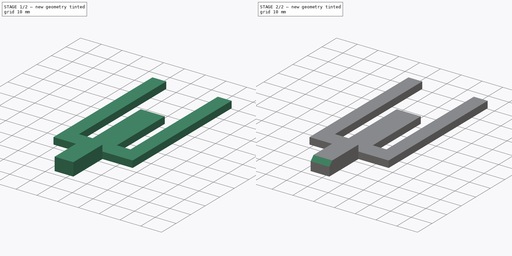
[diagram: build sequence overview — one tinted view per stage of 2, left to right]
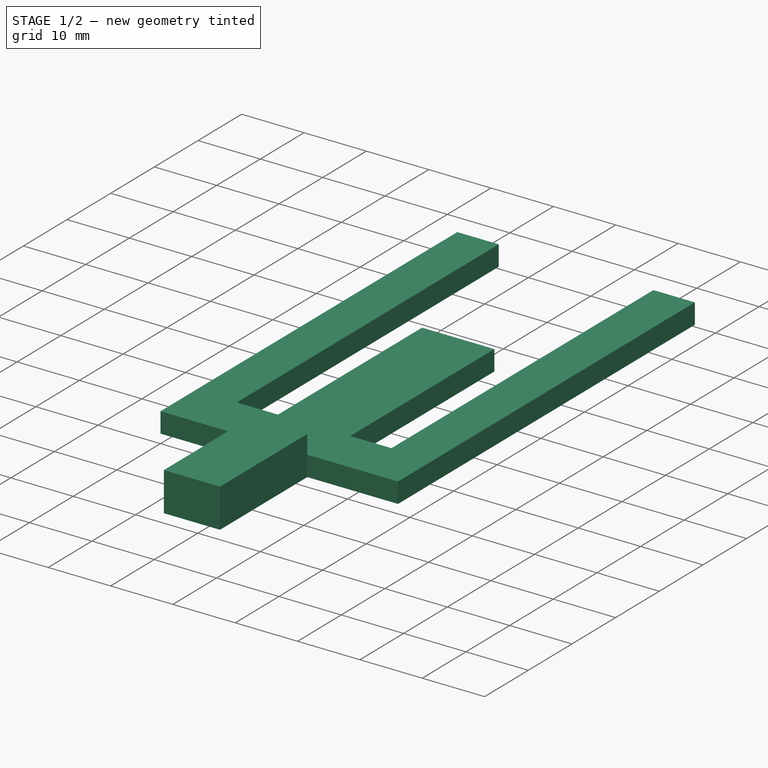
[diagram: stage 1 of 2 — iso view after this stage's code; geometry added in this stage tinted green]
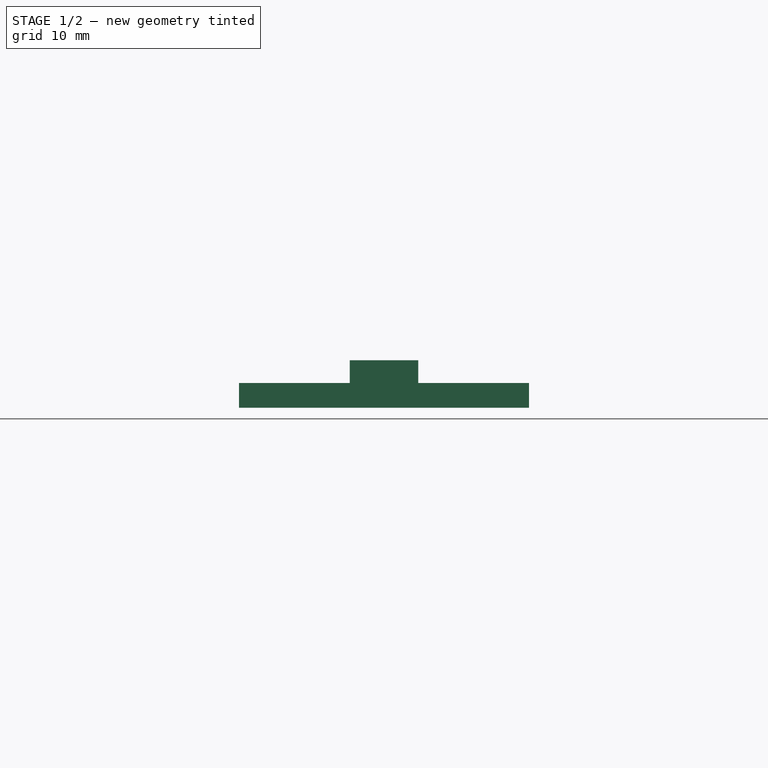
[diagram: stage 1 of 2 — front view after this stage's code; geometry added in this stage tinted green]
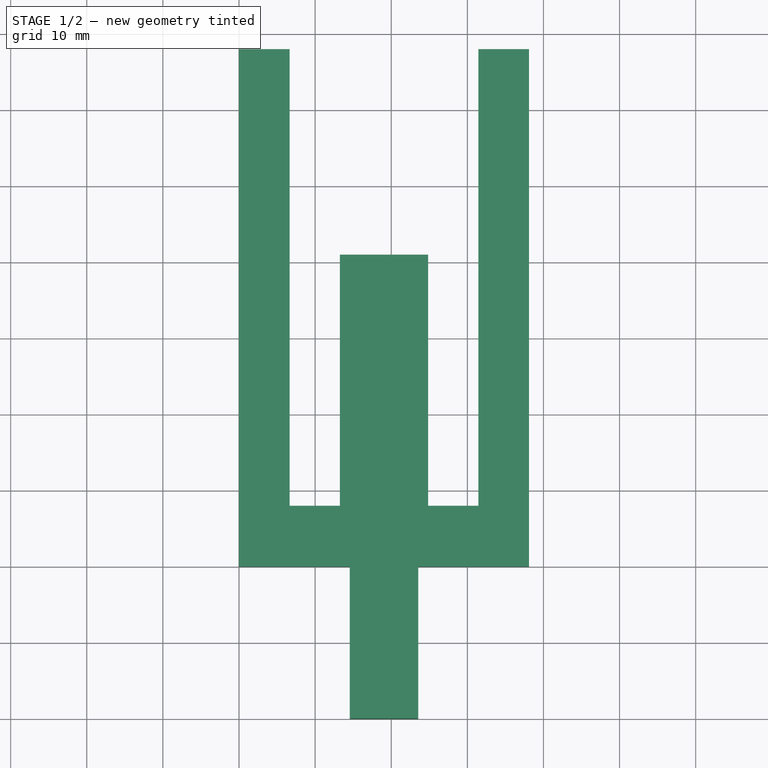
[diagram: stage 1 of 2 — top view after this stage's code; geometry added in this stage tinted green]
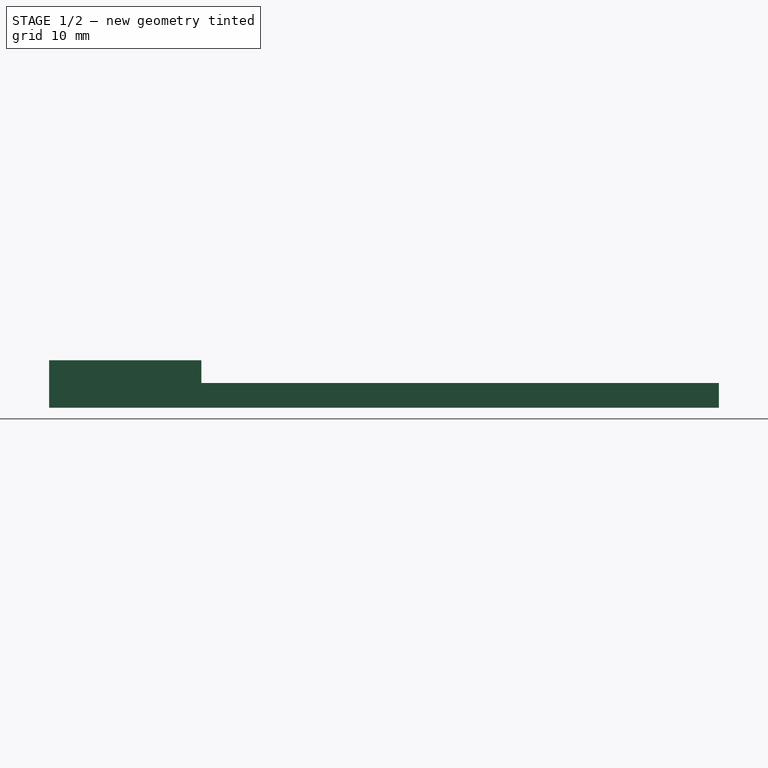
[diagram: stage 1 of 2 — right view after this stage's code; geometry added in this stage tinted green]
FCSTD DOCUMENT  (FreeCAD 0.21R33771 (Git))
Label: table saw pusher
License: All rights reserved
LicenseURL: https://en.wikipedia.org/wiki/All_rights_reserved
objects: Sketcher::SketchObject×2, PartDesign::Pad×2, PartDesign::Chamfer×1, PartDesign::Body×1
note: 9 computed .brp shape members not serialized (recipe doc carries the construction recipe); baked Part::Feature solids carry a one-line shape summary decoded from their .brp

FEATURE [Sketcher::SketchObject] Sketch
  FullyConstrained = true
  MapMode = 5
  Support = -> [XY_Plane]
  sketch-geometry (18):
    g0: LineSegment StartX=38.1 StartY=0 StartZ=0 EndX=38.1 EndY=8 EndZ=0
    g1: LineSegment StartX=31.45 StartY=8 StartZ=0 EndX=24.85 EndY=8 EndZ=0
    g2: LineSegment StartX=0 StartY=8 StartZ=0 EndX=0 EndY=0 EndZ=0
    g3: LineSegment StartX=6.65 StartY=8 StartZ=0 EndX=6.65 EndY=68 EndZ=0
    g4: LineSegment StartX=6.65 StartY=68 StartZ=0 EndX=0 EndY=68 EndZ=0
    g5: LineSegment StartX=0 StartY=68 StartZ=0 EndX=0 EndY=8 EndZ=0
    g6: LineSegment StartX=31.45 StartY=8 StartZ=0 EndX=31.45 EndY=68 EndZ=0
    g7: LineSegment StartX=31.45 StartY=68 StartZ=0 EndX=38.1 EndY=68 EndZ=0
    g8: LineSegment StartX=38.1 StartY=68 StartZ=0 EndX=38.1 EndY=8 EndZ=0
    g9: LineSegment StartX=13.25 StartY=8 StartZ=0 EndX=6.65 EndY=8 EndZ=0
    g10: LineSegment StartX=24.85 StartY=8 StartZ=0 EndX=24.85 EndY=41 EndZ=0
    g11: LineSegment StartX=24.85 StartY=41 StartZ=0 EndX=13.25 EndY=41 EndZ=0
    g12: LineSegment StartX=13.25 StartY=41 StartZ=0 EndX=13.25 EndY=8 EndZ=0
    g13: LineSegment StartX=23.55 StartY=0 StartZ=0 EndX=23.55 EndY=-20 EndZ=0
    g14: LineSegment StartX=23.55 StartY=-20 StartZ=0 EndX=14.55 EndY=-20 EndZ=0
    g15: LineSegment StartX=14.55 StartY=-20 StartZ=0 EndX=14.55 EndY=0 EndZ=0
    g16: LineSegment StartX=0 StartY=0 StartZ=0 EndX=14.55 EndY=0 EndZ=0
    g17: LineSegment StartX=23.55 StartY=0 StartZ=0 EndX=38.1 EndY=0 EndZ=0
  constraints (53):
    c: Horizontal(g1)
    c: Vertical(g0)
    c: Vertical(g2)
    c: Coincident(g2,g-1)
    c: Coincident(g3,g4)
    c: Coincident(g4,g5)
    c: Horizontal(g4)
    c: Vertical(g3)
    c: Vertical(g5)
    c: Coincident(g6,g7)
    c: Coincident(g7,g8)
    c: Horizontal(g7)
    c: Vertical(g6)
    c: Vertical(g8)
    c: Distance(g4) = 6.65
    c: Distance(g7) = 6.65
    c: Distance(g8) = 60
    c: Distance(g3) = 60
    c: Distance(g0) = 8
    c: Horizontal(g1,g0)
    c: Horizontal(g9,g2)
    c: Coincident(g6,g1)
    c: Coincident(g8,g0)
    c: Coincident(g9,g3)
    c: Coincident(g5,g2)
    c: DistanceX(g9,g9) = 6.6
    c: Horizontal(g9,g3)
    c: Coincident(g10,g11)
    c: Coincident(g11,g12)
    c: Horizontal(g11)
    c: Vertical(g10)
    c: Vertical(g12)
    c: Coincident(g10,g1)
    c: Equal(g9,g1)
    c: Distance(g10) = 33
    c: Coincident(g12,g9)
    c: Horizontal(g9,g1)
    c: Coincident(g13,g14)
    c: Coincident(g14,g15)
    c: Horizontal(g14)
    c: Vertical(g13)
    c: Vertical(g15)
    c: Distance(g13) = 20
    c: Distance(g14) = 9
    c: DistanceX(g2,g15) = 14.55
    c: Coincident(g16,g2)
    c: Coincident(g16,g15)
    c: Horizontal(g16)
    c: Coincident(g17,g13)
    c: Horizontal(g17)
    c: Coincident(g17,g0)
    c: PointOnObject(g0,g-1)
    c: Equal(g16,g17)
FEATURE [PartDesign::Pad] Pad
  Direction = (0,0,1)
  Length = 3.25
  Length2 = 10
  Profile = -> Sketch
  ReferenceAxis = -> Sketch [N_Axis]
  Type = 0
FEATURE [Sketcher::SketchObject] Sketch001
  ExternalGeometry = -> [Pad]
  FullyConstrained = true
  MapMode = 5
  Placement = pos=(0,0,3.25) rot=(0,0,1;0rad)
  Support = -> [Pad]
  sketch-geometry (4):
    g0: LineSegment StartX=14.55 StartY=-20 StartZ=0 EndX=23.55 EndY=-20 EndZ=0
    g1: LineSegment StartX=23.55 StartY=-20 StartZ=0 EndX=23.55 EndY=0 EndZ=0
    g2: LineSegment StartX=23.55 StartY=0 StartZ=0 EndX=14.55 EndY=0 EndZ=0
    g3: LineSegment StartX=14.55 StartY=0 StartZ=0 EndX=14.55 EndY=-20 EndZ=0
  constraints (10):
    c: Coincident(g0,g1)
    c: Coincident(g1,g2)
    c: Coincident(g2,g3)
    c: Coincident(g3,g0)
    c: Horizontal(g0)
    c: Horizontal(g2)
    c: Vertical(g1)
    c: Vertical(g3)
    c: Coincident(g0,g-5)
    c: Coincident(g1,g-3)
FEATURE [PartDesign::Pad] Pad001
  BaseFeature = -> Pad
  Direction = (0,0,1)
  Length = 3
  Length2 = 10
  Profile = -> Sketch001
  ReferenceAxis = -> Sketch001 [N_Axis]
  Type = 0
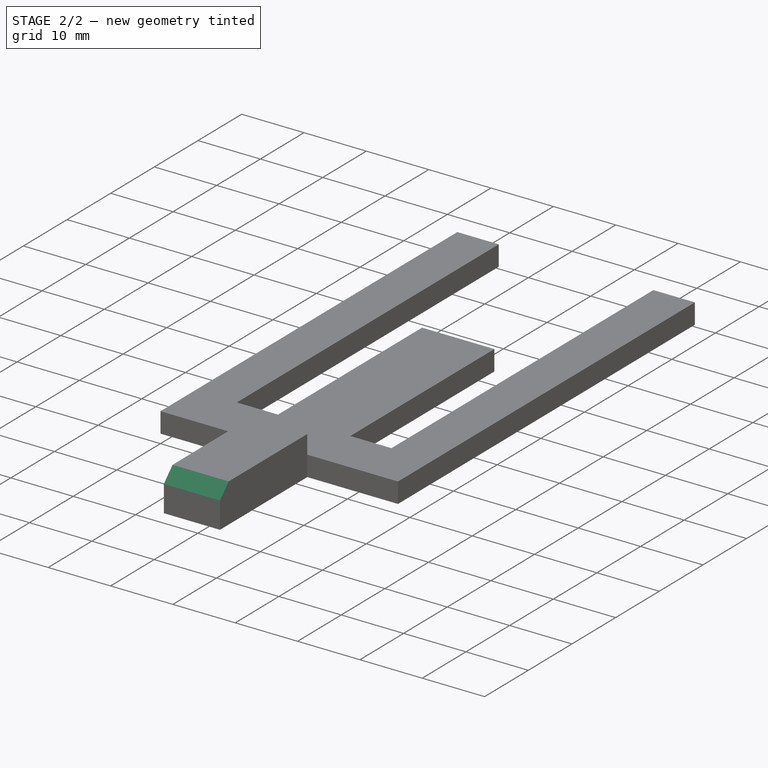
[diagram: stage 2 of 2 — iso view after this stage's code; geometry added in this stage tinted green]
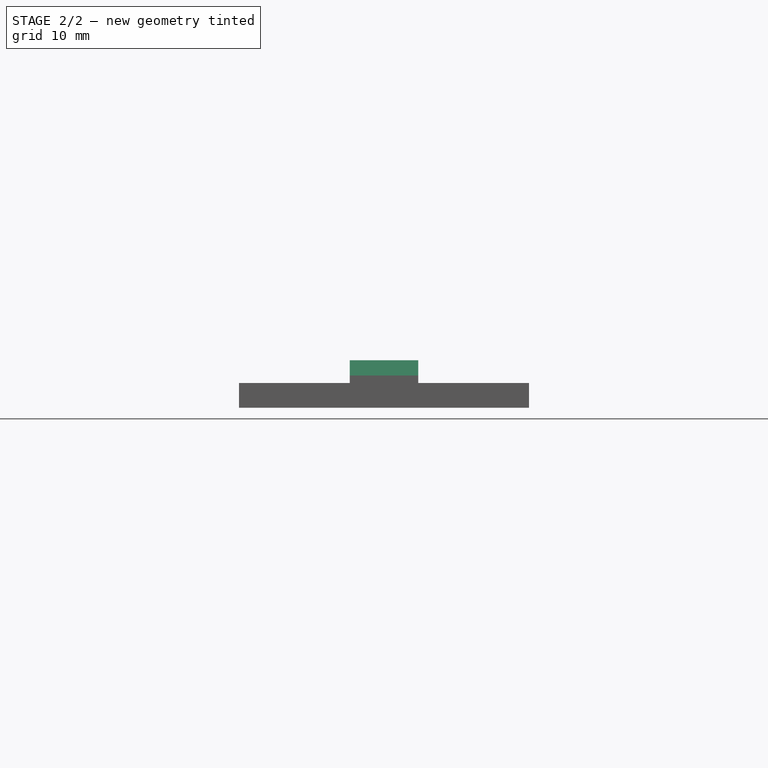
[diagram: stage 2 of 2 — front view after this stage's code; geometry added in this stage tinted green]
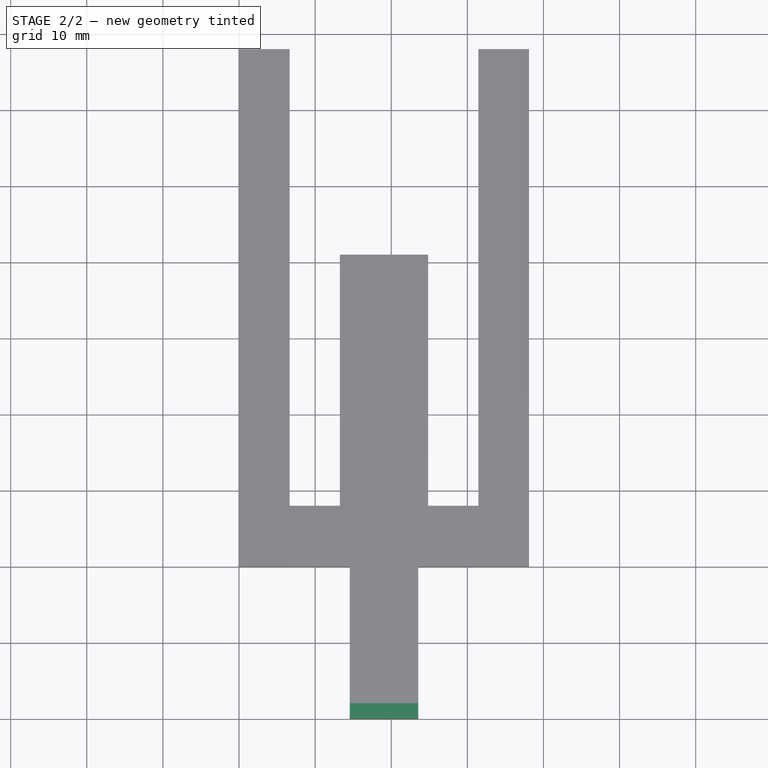
[diagram: stage 2 of 2 — top view after this stage's code; geometry added in this stage tinted green]
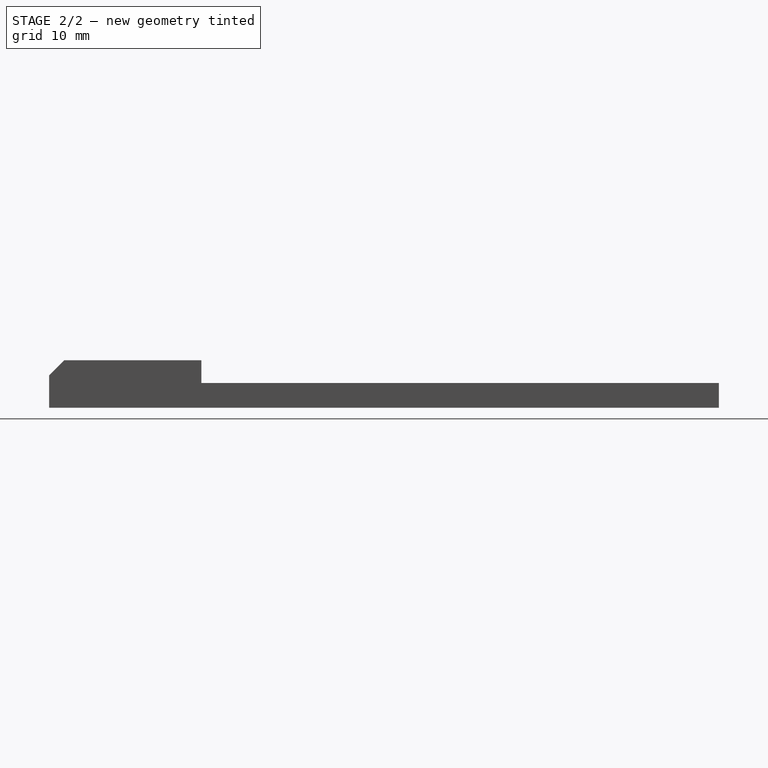
[diagram: stage 2 of 2 — right view after this stage's code; geometry added in this stage tinted green]
FEATURE [PartDesign::Chamfer] Chamfer
  Angle = 45
  Base = -> Pad001 [Edge62]
  BaseFeature = -> Pad001
  ChamferType = 0
  FlipDirection = false
  Size = 2
  Size2 = 1
  SupportTransform = false
  UseAllEdges = false
FEATURE [PartDesign::Body] Body
  Group = -> [Sketch,Pad,Sketch001,Pad001,Chamfer]
  Origin = -> Origin
  Tip = -> Chamfer
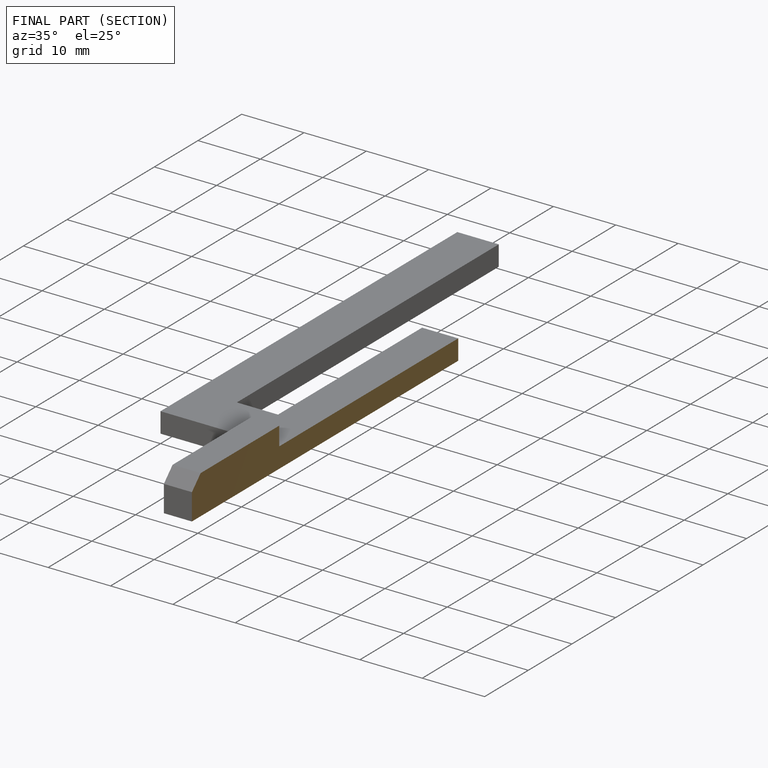
[diagram: finished part — half-section view (interior)]
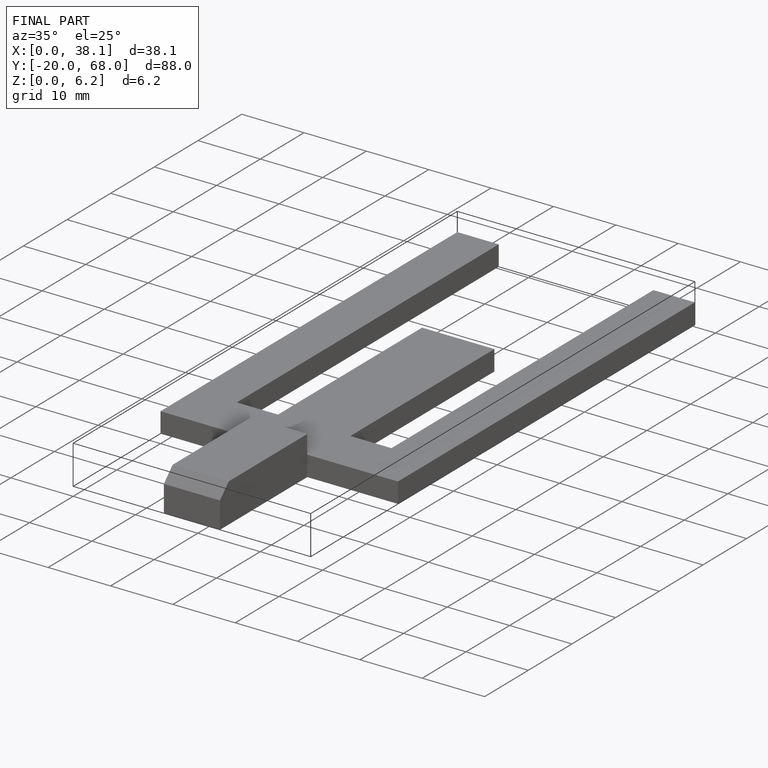
[diagram: finished part — iso view with bounding-box wireframe]
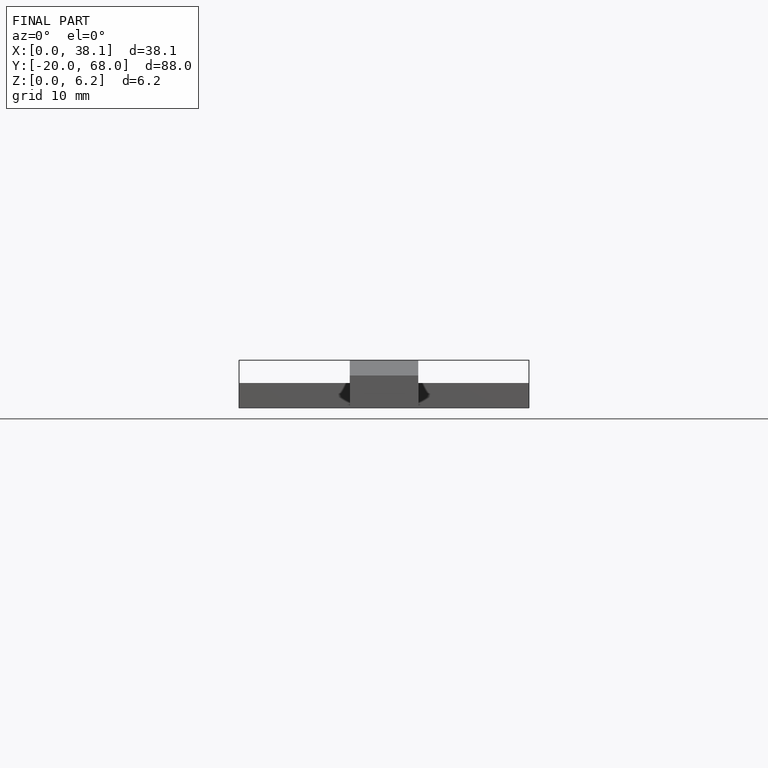
[diagram: finished part — front view with bounding-box wireframe]
